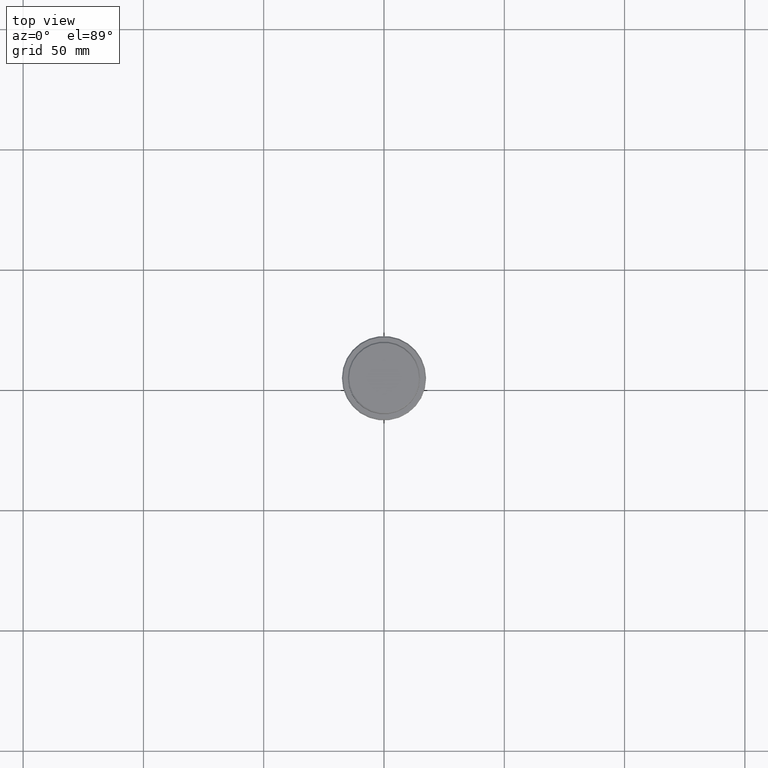
[diagram: clean part render]
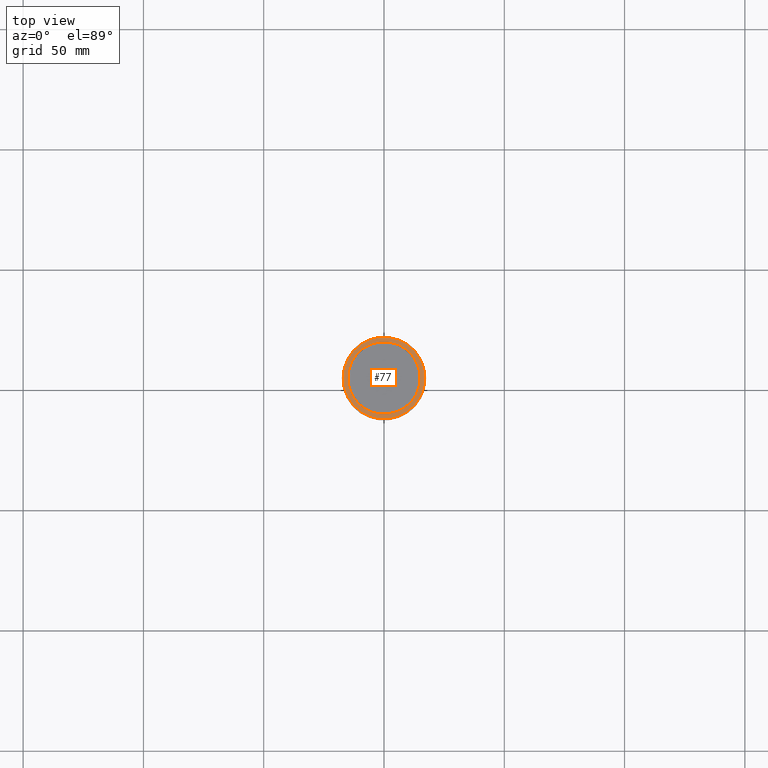
[diagram: same view with one face highlighted and labeled with its STEP entity id]
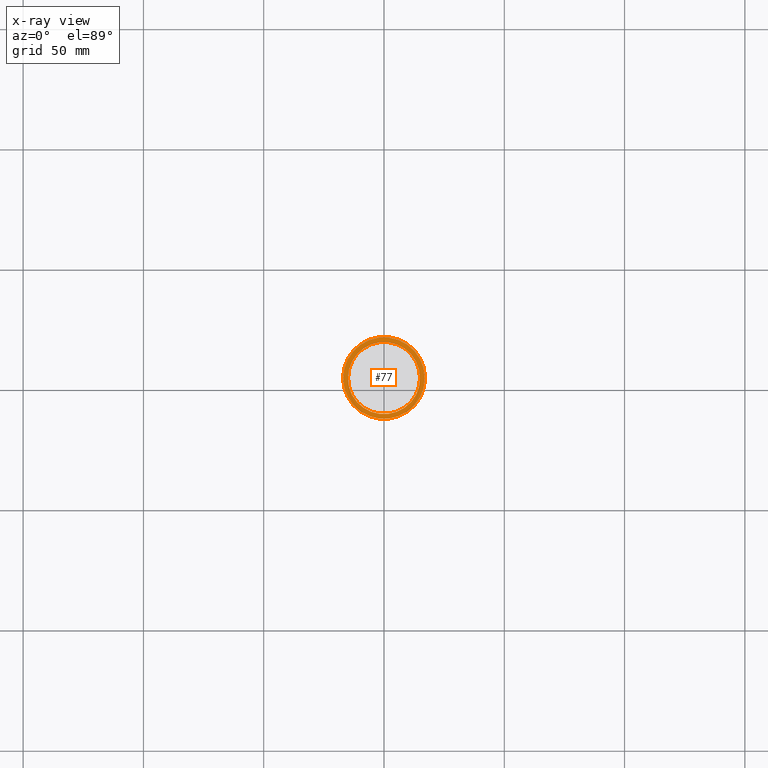
[diagram: x-ray of the same camera — body ghosted, the highlighted face saturated]
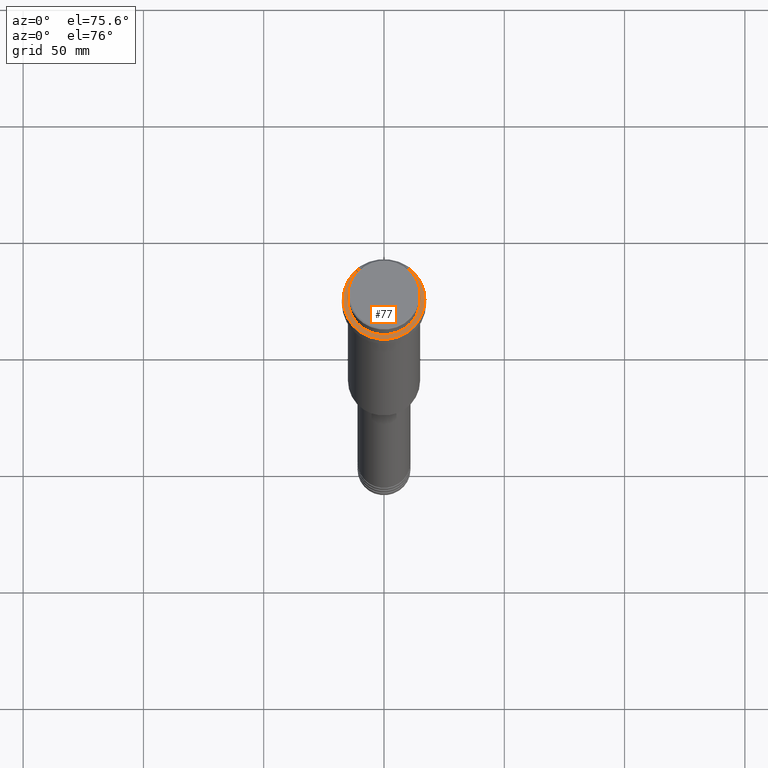
[diagram: same view with one face highlighted and labeled with its STEP entity id]
A machine part, top view. The second image highlights one B-rep face of the part: STEP entity #77.
The next image is the same camera in x-ray: the body ghosted, the highlighted face saturated — about 0% of this face is hidden behind the body in this view.
A second angle (auxiliary view) of the same face is appended — the face is thin or edge-on in the first view.
In plain terms, the highlighted planar face has unit normal (0, -0, 1).
Its self-contained STEP definition (entity closure, byte-faithful):
#36 = CARTESIAN_POINT ( 'NONE',  ( 0.000000000000000000, 0.000000000000000000, -9.000000000000001776 ) ) ;
#77 = ADVANCED_FACE ( 'NONE', ( #255, #1338 ), #497, .T. ) ;
#92 = EDGE_CURVE ( 'NONE', #594, #1287, #1279, .T. ) ;
#135 = CIRCLE ( 'NONE', #1256, 14.99999999999999467 ) ;
#154 = CARTESIAN_POINT ( 'NONE',  ( 0.000000000000000000, 0.000000000000000000, -9.000000000000001776 ) ) ;
#165 = ORIENTED_EDGE ( 'NONE', *, *, #489, .T. ) ;
#184 = EDGE_LOOP ( 'NONE', ( #165, #347 ) ) ;
#219 = CARTESIAN_POINT ( 'NONE',  ( 0.000000000000000000, 0.000000000000000000, -9.000000000000001776 ) ) ;
#249 = CIRCLE ( 'NONE', #391, 14.99999999999999467 ) ;
#255 = FACE_OUTER_BOUND ( 'NONE', #184, .T. ) ;
#271 = DIRECTION ( 'NONE',  ( -0.000000000000000000, -0.000000000000000000, 1.000000000000000000 ) ) ;
#347 = ORIENTED_EDGE ( 'NONE', *, *, #92, .T. ) ;
#381 = CARTESIAN_POINT ( 'NONE',  ( 0.000000000000000000, 0.000000000000000000, -9.000000000000001776 ) ) ;
#389 = DIRECTION ( 'NONE',  ( -0.000000000000000000, -0.000000000000000000, 1.000000000000000000 ) ) ;
#391 = AXIS2_PLACEMENT_3D ( 'NONE', #219, #1406, #866 ) ;
#414 = AXIS2_PLACEMENT_3D ( 'NONE', #482, #923, #703 ) ;
#481 = AXIS2_PLACEMENT_3D ( 'NONE', #381, #271, #1148 ) ;
#482 = CARTESIAN_POINT ( 'NONE',  ( 0.000000000000000000, 14.49999999999999467, -9.000000000000001776 ) ) ;
#489 = EDGE_CURVE ( 'NONE', #1287, #594, #981, .T. ) ;
#497 = PLANE ( 'NONE',  #414 ) ;
#594 = VERTEX_POINT ( 'NONE', #692 ) ;
#619 = VERTEX_POINT ( 'NONE', #833 ) ;
#692 = CARTESIAN_POINT ( 'NONE',  ( 16.99999999999996092, 2.112515728529182095E-15, -9.000000000000001776 ) ) ;
#703 = DIRECTION ( 'NONE',  ( 1.000000000000000000, 0.000000000000000000, 0.000000000000000000 ) ) ;
#739 = ORIENTED_EDGE ( 'NONE', *, *, #1404, .T. ) ;
#762 = CARTESIAN_POINT ( 'NONE',  ( 14.99999999999999467, 0.000000000000000000, -9.000000000000001776 ) ) ;
#826 = EDGE_LOOP ( 'NONE', ( #739, #844 ) ) ;
#833 = CARTESIAN_POINT ( 'NONE',  ( -14.99999999999999467, 1.836970198721029194E-15, -9.000000000000001776 ) ) ;
#844 = ORIENTED_EDGE ( 'NONE', *, *, #1250, .T. ) ;
#866 = DIRECTION ( 'NONE',  ( 1.000000000000000000, 0.000000000000000000, 0.000000000000000000 ) ) ;
#880 = CARTESIAN_POINT ( 'NONE',  ( -16.99999999999996092, 0.000000000000000000, -9.000000000000001776 ) ) ;
#923 = DIRECTION ( 'NONE',  ( 0.000000000000000000, -0.000000000000000000, 1.000000000000000000 ) ) ;
#981 = CIRCLE ( 'NONE', #481, 16.99999999999996092 ) ;
#1037 = DIRECTION ( 'NONE',  ( 1.000000000000000000, 0.000000000000000000, 0.000000000000000000 ) ) ;
#1124 = DIRECTION ( 'NONE',  ( 0.000000000000000000, 0.000000000000000000, -1.000000000000000000 ) ) ;
#1137 = AXIS2_PLACEMENT_3D ( 'NONE', #154, #389, #1037 ) ;
#1148 = DIRECTION ( 'NONE',  ( 1.000000000000000000, 0.000000000000000000, 0.000000000000000000 ) ) ;
#1250 = EDGE_CURVE ( 'NONE', #619, #1294, #249, .T. ) ;
#1256 = AXIS2_PLACEMENT_3D ( 'NONE', #36, #1124, #1358 ) ;
#1279 = CIRCLE ( 'NONE', #1137, 16.99999999999996092 ) ;
#1287 = VERTEX_POINT ( 'NONE', #880 ) ;
#1294 = VERTEX_POINT ( 'NONE', #762 ) ;
#1338 = FACE_BOUND ( 'NONE', #826, .T. ) ;
#1358 = DIRECTION ( 'NONE',  ( 1.000000000000000000, 0.000000000000000000, 0.000000000000000000 ) ) ;
#1404 = EDGE_CURVE ( 'NONE', #1294, #619, #135, .T. ) ;
#1406 = DIRECTION ( 'NONE',  ( 0.000000000000000000, 0.000000000000000000, -1.000000000000000000 ) ) ;